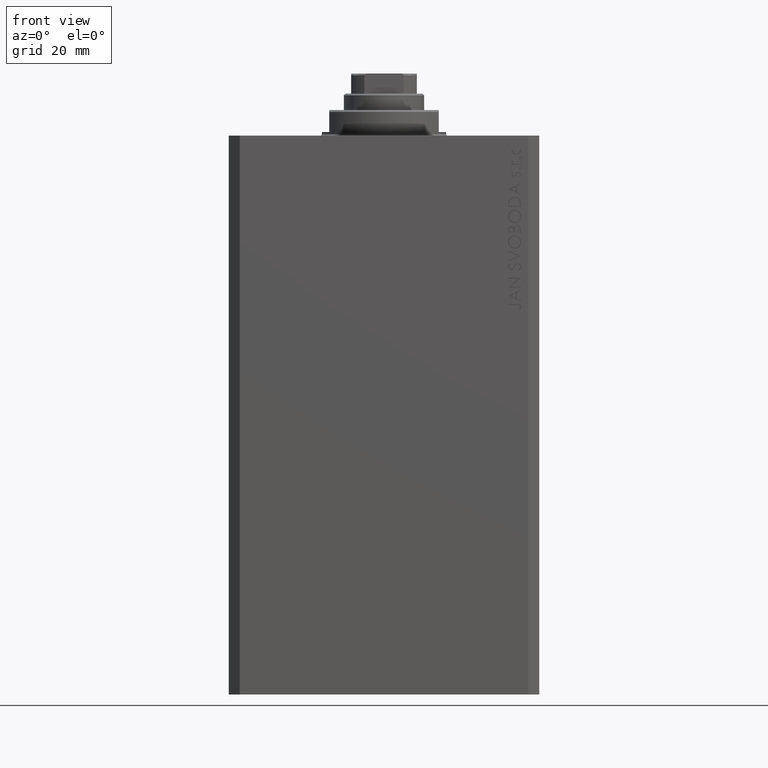
[diagram: clean part render]
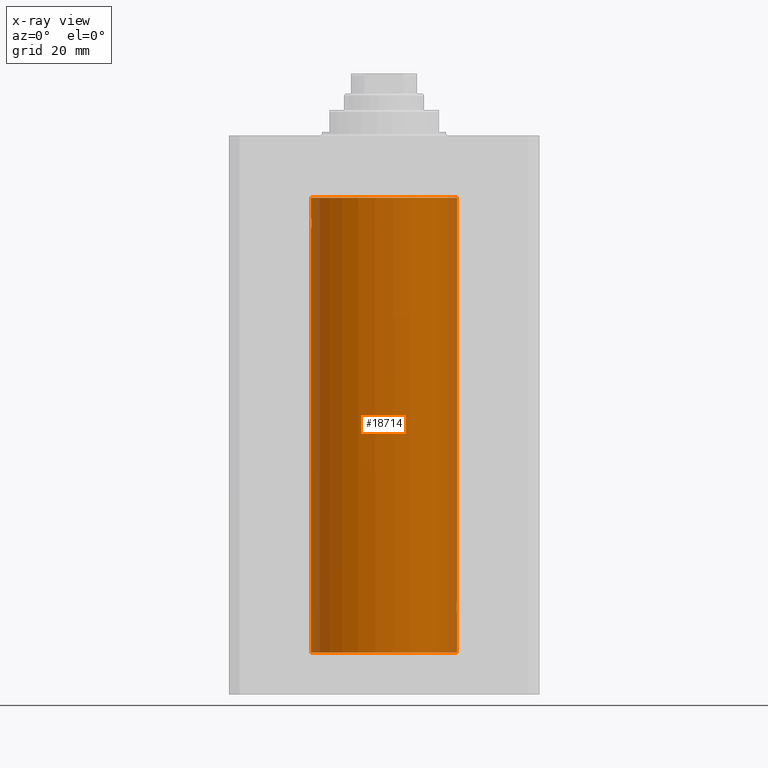
[diagram: x-ray — body ghosted, one internal face saturated and labeled with its STEP entity id]
A machine part, front view, then the same camera in x-ray: the body is ghosted and one INTERNAL B-rep face — a face not visible from any outside direction — is saturated and labeled: STEP entity #18714.
In plain terms, the highlighted cylindrical surface (partial cylindrical patch) has radius 20 mm, axis along (0, 0, 1).
Its self-contained STEP definition (entity closure, byte-faithful):
#188 = B_SPLINE_CURVE_WITH_KNOTS ( 'NONE', 3,
 ( #20835, #3654, #41549, #10642, #34785, #29376, #22375, #18554, #7914, #21495, #1613, #11531, #8579, #28481, #8364, #28704, #4542, #18996, #42652, #36118, #8138, #1173, #14936, #21713, #35451, #35897 ),
 .UNSPECIFIED., .F., .F.,
 ( 4, 2, 2, 2, 2, 2, 2, 2, 2, 2, 2, 2, 4 ),
 ( 0.006256819553329842284, 0.007038738568778816693, 0.007820657584227789366, 0.008211617091952273101, 0.008602576599676756836, 0.008993536107401240570, 0.009384495615125724305, 0.009775455122850208040, 0.01016641463057469177, 0.01055737413829917551, 0.01094833364602365751, 0.01173025266147262498, 0.01251217167692159245 ),
 .UNSPECIFIED. ) ;
#1173 = CARTESIAN_POINT ( 'NONE',  ( -19.96293863536309487, -1.230936344679270933, -22.40225308445269548 ) ) ;
#1613 = CARTESIAN_POINT ( 'NONE',  ( -19.90611141657401717, -1.935816449315122423, -24.51923512135276439 ) ) ;
#1691 = CARTESIAN_POINT ( 'NONE',  ( 20.00000000000000000, 0.000000000000000000, -141.5999999999999943 ) ) ;
#2117 = VERTEX_POINT ( 'NONE', #11350 ) ;
#2128 = DIRECTION ( 'NONE',  ( -0.000000000000000000, -0.000000000000000000, 1.000000000000000000 ) ) ;
#2757 = CARTESIAN_POINT ( 'NONE',  ( 19.93674030556023524, -1.591123942389848223, -130.2187588700503227 ) ) ;
#2975 = CARTESIAN_POINT ( 'NONE',  ( 19.89974874213243083, -1.999999999999656053, -129.1320736180661868 ) ) ;
#3205 = CARTESIAN_POINT ( 'NONE',  ( 19.94337316053472264, -1.506783194222111044, -130.3215850766146389 ) ) ;
#3276 = CARTESIAN_POINT ( 'NONE',  ( 19.92467362751852633, -1.735709893904983980, -127.9978039393058253 ) ) ;
#3427 = CARTESIAN_POINT ( 'NONE',  ( 19.89974874213243439, -1.999999999999655609, -129.0000000000000000 ) ) ;
#3654 = CARTESIAN_POINT ( 'NONE',  ( -20.00000000000000000, -0.2610801504281904384, -26.00000000000000000 ) ) ;
#3899 = ORIENTED_EDGE ( 'NONE', *, *, #10983, .F. ) ;
#4224 = DIRECTION ( 'NONE',  ( -0.000000000000000000, -0.000000000000000000, 1.000000000000000000 ) ) ;
#4542 = CARTESIAN_POINT ( 'NONE',  ( -19.90978194174746818, -1.898187925611333871, -23.35651471266957557 ) ) ;
#4643 = EDGE_CURVE ( 'NONE', #43110, #19226, #41138, .T. ) ;
#6840 = EDGE_CURVE ( 'NONE', #19226, #42293, #15791, .T. ) ;
#6975 = EDGE_CURVE ( 'NONE', #16566, #17016, #20554, .T. ) ;
#7343 = CARTESIAN_POINT ( 'NONE',  ( 20.00000000000000000, 0.000000000000000000, -141.5999999999999943 ) ) ;
#7807 = CIRCLE ( 'NONE', #34492, 20.00000000000000000 ) ;
#7914 = CARTESIAN_POINT ( 'NONE',  ( -19.91919800395357143, -1.796691196322314443, -24.88829437207090933 ) ) ;
#8138 = CARTESIAN_POINT ( 'NONE',  ( -19.94333197382385947, -1.507328959728486240, -22.67903093152709815 ) ) ;
#8195 = ORIENTED_EDGE ( 'NONE', *, *, #22587, .F. ) ;
#8364 = CARTESIAN_POINT ( 'NONE',  ( -19.90104673894211018, -1.987205673487805191, -23.73922743968431348 ) ) ;
#8579 = CARTESIAN_POINT ( 'NONE',  ( -19.89975896996866567, -1.999898234284059217, -24.13365196142448710 ) ) ;
#8920 = CARTESIAN_POINT ( 'NONE',  ( 19.99457156948952630, -0.5245703965536839819, -127.0525002876190541 ) ) ;
#8963 = DIRECTION ( 'NONE',  ( 1.000000000000000000, 0.000000000000000000, 0.000000000000000000 ) ) ;
#10260 = CARTESIAN_POINT ( 'NONE',  ( 19.90607912840593130, -1.936147476084614460, -128.4819853815527892 ) ) ;
#10642 = CARTESIAN_POINT ( 'NONE',  ( -19.97614991974273835, -1.005710574260838541, -25.74825913460018256 ) ) ;
#10983 = EDGE_CURVE ( 'NONE', #2117, #42293, #35543, .T. ) ;
#11202 = FACE_OUTER_BOUND ( 'NONE', #37739, .T. ) ;
#11277 = EDGE_CURVE ( 'NONE', #35369, #29445, #43347, .T. ) ;
#11350 = CARTESIAN_POINT ( 'NONE',  ( 20.00000000000000000, 0.000000000000000000, -141.5999999999999943 ) ) ;
#11531 = CARTESIAN_POINT ( 'NONE',  ( -19.90108393514801577, -1.986835489085811091, -24.26358144091414459 ) ) ;
#12139 = CARTESIAN_POINT ( 'NONE',  ( 0.000000000000000000, 0.000000000000000000, -141.5999999999999943 ) ) ;
#13214 = CARTESIAN_POINT ( 'NONE',  ( 19.93679035661676480, -1.590502522866567459, -127.7804150277140565 ) ) ;
#13885 = CARTESIAN_POINT ( 'NONE',  ( 19.89974874213243439, -1.999999999999655609, -129.0000000000000000 ) ) ;
#14484 = VECTOR ( 'NONE', #23406, 1000.000000000000000 ) ;
#14936 = CARTESIAN_POINT ( 'NONE',  ( -19.97602680192586533, -1.008108445278681486, -22.25313023696928383 ) ) ;
#15050 = CARTESIAN_POINT ( 'NONE',  ( 0.000000000000000000, 0.000000000000000000, -141.5999999999999943 ) ) ;
#15070 = CARTESIAN_POINT ( 'NONE',  ( -20.00000000000000000, 2.449293582768784389E-15, -25.99999999999999645 ) ) ;
#15369 = DIRECTION ( 'NONE',  ( 0.000000000000000000, 0.000000000000000000, 1.000000000000000000 ) ) ;
#15418 = CARTESIAN_POINT ( 'NONE',  ( -20.00000000000000000, 2.449293598294706513E-15, -141.5999999999999943 ) ) ;
#15791 = B_SPLINE_CURVE_WITH_KNOTS ( 'NONE', 3,
 ( #3427, #2975, #20376, #44469, #34118, #17207, #33666, #2757, #3205, #30527, #20150, #27134, #30303, #33888 ),
 .UNSPECIFIED., .F., .F.,
 ( 4, 2, 2, 2, 2, 2, 4 ),
 ( 0.009386006266958988459, 0.009776776943204314174, 0.01016754761944964162, 0.01055831829569496734, 0.01094908897194029479, 0.01173063032443094622, 0.01251217167692159939 ),
 .UNSPECIFIED. ) ;
#16240 = ORIENTED_EDGE ( 'NONE', *, *, #4643, .T. ) ;
#16566 = VERTEX_POINT ( 'NONE', #25782 ) ;
#17016 = VERTEX_POINT ( 'NONE', #40242 ) ;
#17207 = CARTESIAN_POINT ( 'NONE',  ( 19.91912874598169125, -1.797456133345315177, -129.8867487037038302 ) ) ;
#18529 = ORIENTED_EDGE ( 'NONE', *, *, #24833, .T. ) ;
#18554 = CARTESIAN_POINT ( 'NONE',  ( -19.92471783160912224, -1.735203193119891019, -25.00306556339602082 ) ) ;
#18714 = ADVANCED_FACE ( 'NONE', ( #11202 ), #38071, .F. ) ;
#18996 = CARTESIAN_POINT ( 'NONE',  ( -19.91908554465556946, -1.797933656607911823, -23.11420923329271560 ) ) ;
#19073 = LINE ( 'NONE', #1691, #33313 ) ;
#19226 = VERTEX_POINT ( 'NONE', #34135 ) ;
#20017 = AXIS2_PLACEMENT_3D ( 'NONE', #15050, #4224, #38726 ) ;
#20150 = CARTESIAN_POINT ( 'NONE',  ( 19.97604812261521090, -1.007662572237611132, -130.7471082404733522 ) ) ;
#20376 = CARTESIAN_POINT ( 'NONE',  ( 19.90106527362735633, -1.987020983172497424, -129.2621458537985859 ) ) ;
#20554 = CIRCLE ( 'NONE', #21986, 20.00000000000000000 ) ;
#20835 = CARTESIAN_POINT ( 'NONE',  ( -20.00000000000000000, 2.449293582768784389E-15, -25.99999999999999645 ) ) ;
#20852 = CARTESIAN_POINT ( 'NONE',  ( -20.00000000000000000, 2.449293598294706513E-15, -141.5999999999999943 ) ) ;
#21495 = CARTESIAN_POINT ( 'NONE',  ( -19.90987429971497491, -1.897222639860592031, -24.64630673924644100 ) ) ;
#21713 = CARTESIAN_POINT ( 'NONE',  ( -19.99450181871976184, -0.5270924491156651071, -22.05320515808201876 ) ) ;
#21986 = AXIS2_PLACEMENT_3D ( 'NONE', #33174, #15369, #32741 ) ;
#22332 = ORIENTED_EDGE ( 'NONE', *, *, #11277, .T. ) ;
#22375 = CARTESIAN_POINT ( 'NONE',  ( -19.93683391378735692, -1.589957321664204226, -25.22028945794464150 ) ) ;
#22587 = EDGE_CURVE ( 'NONE', #35369, #2117, #7807, .T. ) ;
#22711 = CARTESIAN_POINT ( 'NONE',  ( 19.97612863609106171, -1.006156579624595482, -127.2519787850423256 ) ) ;
#23406 = DIRECTION ( 'NONE',  ( -0.000000000000000000, -0.000000000000000000, 1.000000000000000000 ) ) ;
#23819 = CARTESIAN_POINT ( 'NONE',  ( 19.91915476385080197, -1.797169352086254390, -128.1126628205572331 ) ) ;
#24000 = CARTESIAN_POINT ( 'NONE',  ( -20.00000000000000000, -1.269718202421245235E-16, -22.00000000000000000 ) ) ;
#24147 = VECTOR ( 'NONE', #40188, 1000.000000000000000 ) ;
#24833 = EDGE_CURVE ( 'NONE', #32710, #16566, #40980, .T. ) ;
#25782 = CARTESIAN_POINT ( 'NONE',  ( -20.00000000000000000, 2.449293598294706513E-15, -17.00000000000000000 ) ) ;
#25905 = DIRECTION ( 'NONE',  ( 0.000000000000000000, 0.000000000000000000, 1.000000000000000000 ) ) ;
#26087 = CARTESIAN_POINT ( 'NONE',  ( 20.00000000000000000, -1.553109350199128042E-23, -127.0000000000000000 ) ) ;
#27098 = ORIENTED_EDGE ( 'NONE', *, *, #6975, .T. ) ;
#27134 = CARTESIAN_POINT ( 'NONE',  ( 19.99450726301180836, -0.5268413099739815975, -130.9468459871092989 ) ) ;
#28481 = CARTESIAN_POINT ( 'NONE',  ( -19.89973863218036243, -2.000100592782549036, -23.86941128289164737 ) ) ;
#28704 = CARTESIAN_POINT ( 'NONE',  ( -19.90603968831098669, -1.936551476643001646, -23.48351467081094057 ) ) ;
#28811 = CARTESIAN_POINT ( 'NONE',  ( 20.00000000000000000, 3.320656427414327395E-15, -131.0000000000000000 ) ) ;
#29376 = CARTESIAN_POINT ( 'NONE',  ( -19.94347168299867334, -1.505486175075769539, -25.32306668919470027 ) ) ;
#29445 = VERTEX_POINT ( 'NONE', #15070 ) ;
#30303 = CARTESIAN_POINT ( 'NONE',  ( 20.00000000000000000, -0.2642773949967772706, -130.9999999999999716 ) ) ;
#30527 = CARTESIAN_POINT ( 'NONE',  ( 19.96296989966237234, -1.230425635331418910, -130.5981187666769756 ) ) ;
#30862 = CARTESIAN_POINT ( 'NONE',  ( -20.00000000000000000, 2.449293598294706513E-15, -141.5999999999999943 ) ) ;
#31263 = CARTESIAN_POINT ( 'NONE',  ( 19.94343050116685134, -1.506032346525476795, -127.6775485712697247 ) ) ;
#32710 = VERTEX_POINT ( 'NONE', #24000 ) ;
#32741 = DIRECTION ( 'NONE',  ( 1.000000000000000000, 0.000000000000000000, 0.000000000000000000 ) ) ;
#33174 = CARTESIAN_POINT ( 'NONE',  ( 0.000000000000000000, 0.000000000000000000, -17.00000000000000000 ) ) ;
#33294 = CARTESIAN_POINT ( 'NONE',  ( 19.96304361591165133, -1.229269670911809609, -127.4009562492831833 ) ) ;
#33313 = VECTOR ( 'NONE', #2128, 1000.000000000000000 ) ;
#33666 = CARTESIAN_POINT ( 'NONE',  ( 19.92464121718640868, -1.736076547215880561, -130.0015422135783751 ) ) ;
#33888 = CARTESIAN_POINT ( 'NONE',  ( 20.00000000000000000, 3.320656427414327395E-15, -131.0000000000000000 ) ) ;
#34118 = CARTESIAN_POINT ( 'NONE',  ( 19.90981966846454299, -1.897793276286218855, -129.6446336132283932 ) ) ;
#34135 = CARTESIAN_POINT ( 'NONE',  ( 19.89974874213243439, -1.999999999999655609, -129.0000000000000000 ) ) ;
#34492 = AXIS2_PLACEMENT_3D ( 'NONE', #12139, #25905, #8963 ) ;
#34785 = CARTESIAN_POINT ( 'NONE',  ( -19.96307487248084911, -1.228758402364232172, -25.59941524884030528 ) ) ;
#34847 = CARTESIAN_POINT ( 'NONE',  ( 19.90106531167247184, -1.987021080928412342, -128.7377912701302591 ) ) ;
#35154 = EDGE_CURVE ( 'NONE', #43110, #17016, #19073, .T. ) ;
#35369 = VERTEX_POINT ( 'NONE', #20852 ) ;
#35451 = CARTESIAN_POINT ( 'NONE',  ( -20.00000000000000000, -0.2644051013330979694, -22.00000000000000000 ) ) ;
#35543 = LINE ( 'NONE', #7343, #43544 ) ;
#35897 = CARTESIAN_POINT ( 'NONE',  ( -20.00000000000000000, -1.269718202421245235E-16, -22.00000000000000000 ) ) ;
#36118 = CARTESIAN_POINT ( 'NONE',  ( -19.93669678979813398, -1.591668229360191367, -22.78194580527848245 ) ) ;
#37125 = ORIENTED_EDGE ( 'NONE', *, *, #35154, .F. ) ;
#37564 = CARTESIAN_POINT ( 'NONE',  ( 19.90983652367462042, -1.897617924364794151, -128.3548402033379716 ) ) ;
#37739 = EDGE_LOOP ( 'NONE', ( #8195, #22332, #44612, #18529, #27098, #37125, #16240, #38591, #3899 ) ) ;
#38071 = CYLINDRICAL_SURFACE ( 'NONE', #20017, 20.00000000000000000 ) ;
#38591 = ORIENTED_EDGE ( 'NONE', *, *, #6840, .T. ) ;
#38726 = DIRECTION ( 'NONE',  ( 1.000000000000000000, 0.000000000000000000, 0.000000000000000000 ) ) ;
#38944 = CARTESIAN_POINT ( 'NONE',  ( 20.00000000000000000, -1.553109350199128042E-23, -127.0000000000000000 ) ) ;
#39826 = CARTESIAN_POINT ( 'NONE',  ( 20.00000000000000000, -0.2612062508298598207, -127.0000000000000853 ) ) ;
#40188 = DIRECTION ( 'NONE',  ( -0.000000000000000000, -0.000000000000000000, 1.000000000000000000 ) ) ;
#40242 = CARTESIAN_POINT ( 'NONE',  ( 20.00000000000000000, 0.000000000000000000, -17.00000000000000000 ) ) ;
#40980 = LINE ( 'NONE', #30862, #14484 ) ;
#41138 = B_SPLINE_CURVE_WITH_KNOTS ( 'NONE', 3,
 ( #26087, #39826, #8920, #22711, #33294, #31263, #13214, #3276, #23819, #37564, #10260, #34847, #44540, #13885 ),
 .UNSPECIFIED., .F., .F.,
 ( 4, 2, 2, 2, 2, 2, 4 ),
 ( 0.006256819553330525766, 0.007039116231737641005, 0.007821412910144756245, 0.008212561249348314732, 0.008603709588551871484, 0.008994857927755429972, 0.009386006266958988459 ),
 .UNSPECIFIED. ) ;
#41549 = CARTESIAN_POINT ( 'NONE',  ( -19.99457699142850231, -0.5243189001515002889, -25.94755062882507346 ) ) ;
#42293 = VERTEX_POINT ( 'NONE', #28811 ) ;
#42652 = CARTESIAN_POINT ( 'NONE',  ( -19.92459705242980661, -1.736582545981369519, -22.99932780860755699 ) ) ;
#42748 = DIRECTION ( 'NONE',  ( -0.000000000000000000, -0.000000000000000000, 1.000000000000000000 ) ) ;
#42947 = EDGE_CURVE ( 'NONE', #29445, #32710, #188, .T. ) ;
#43110 = VERTEX_POINT ( 'NONE', #38944 ) ;
#43347 = LINE ( 'NONE', #15418, #24147 ) ;
#43544 = VECTOR ( 'NONE', #42748, 1000.000000000000000 ) ;
#44469 = CARTESIAN_POINT ( 'NONE',  ( 19.90607187811044199, -1.936221525612423777, -129.5177055533667101 ) ) ;
#44540 = CARTESIAN_POINT ( 'NONE',  ( 19.89974874213243794, -1.999999999999655609, -128.8677987384940309 ) ) ;
#44612 = ORIENTED_EDGE ( 'NONE', *, *, #42947, .T. ) ;